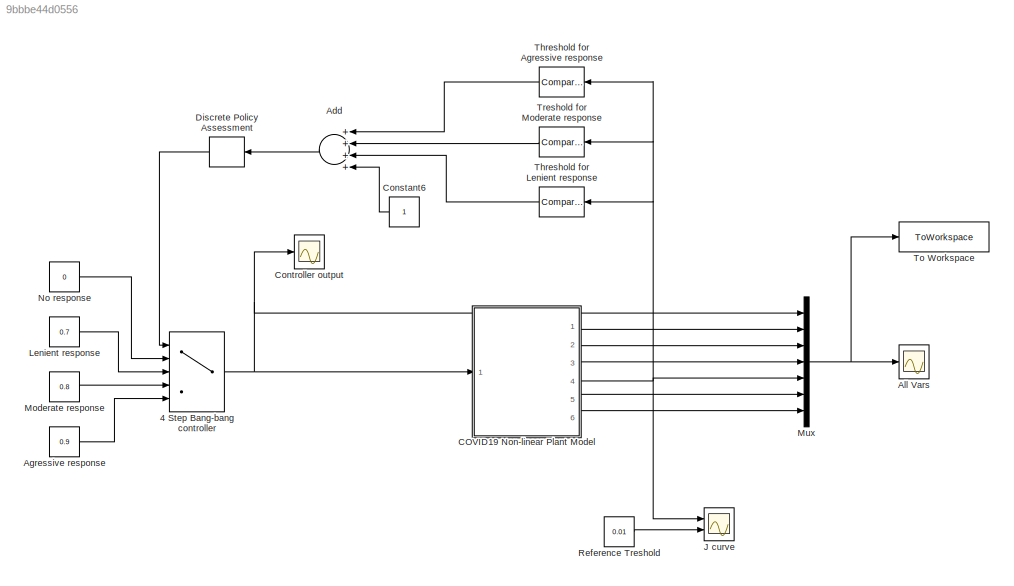
MODEL slx_9bbbe44d0556
KIND model
CONFIG AbsTol = auto
CONFIG EnableMultiTasking = off
CONFIG FixedStep = auto
CONFIG MaxStep = auto
CONFIG MinStep = auto
CONFIG RelTol = 1e-9
CONFIG SampleTimeConstraint = Unconstrained
CONFIG Solver = VariableStepAuto
CONFIG SolverName = VariableStepAuto
CONFIG StartTime = 0.0
CONFIG StopTime = 200
BLOCK [MultiPortSwitch] 4 Step Bang-bang controller
  InputSameDT = off
  Inputs = 4
  Ports = [5, 1]
  SaturateOnIntegerOverflow = off
BLOCK [Sum] Add
  InputSameDT = off
  Inputs = ++++
  OutDataTypeStr = Inherit: Inherit via internal rule
  Ports = [4, 1]
  SaturateOnIntegerOverflow = off
BLOCK [Constant] Agressive response
  Value = 0.9
BLOCK [Scope] All Vars
  Floating = off
  NumInputPorts = 1
  Ports = [1]
  ScopeSpecificationString = Simulink.scopes.TimeScopeBlockCfg('CurrentConfiguration', extmgr.ConfigurationSet(extmgr.Configuration('Core','General UI',true),extmgr.Configuration('Core','Source UI',true),extmgr.Configuration('Sources','WiredSimulink',true,'DataLoggingVariableName','ScopeData2'),extmgr.Configuration('Visuals','Time Domain',true,'SerializedDisplays',{struct('MinYLimReal','-0.1125','MaxYLimReal','1.0125','YLabel...<+1609ch>
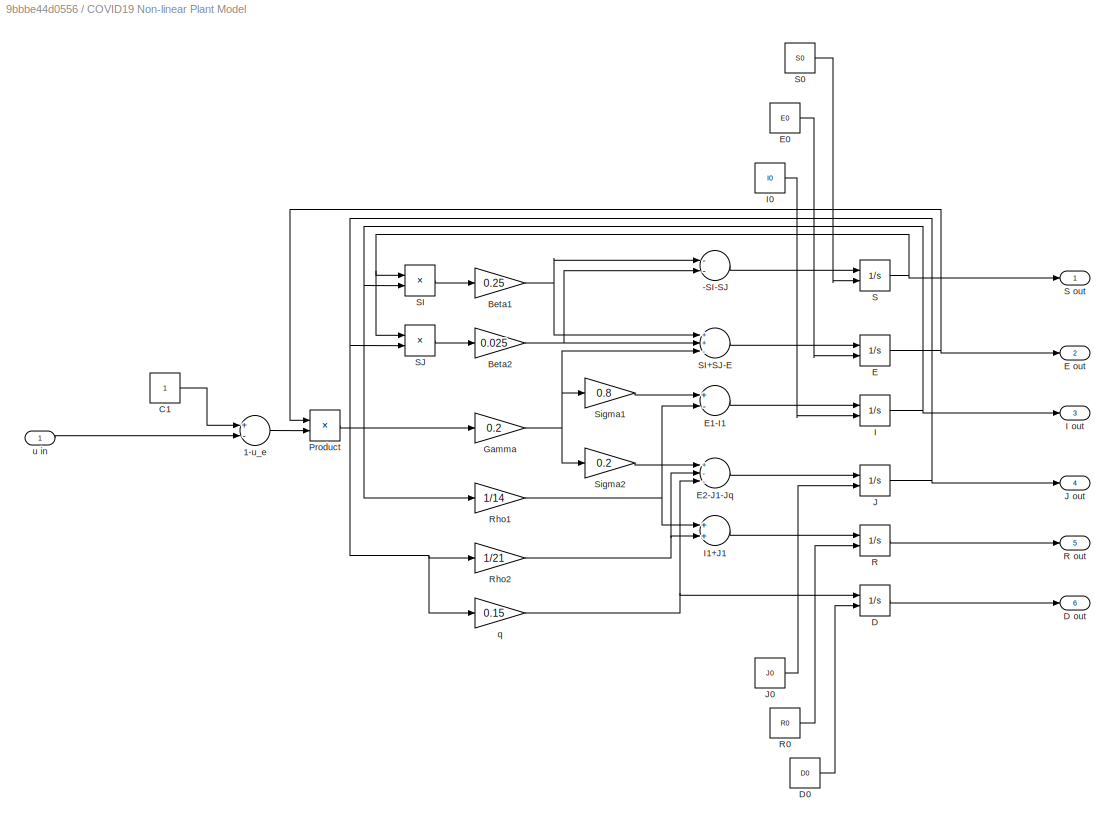
BLOCK [SubSystem] COVID19 Non-linear Plant Model
  Ports = [1, 6]
  RequestExecContextInheritance = off
BLOCK [Sum] COVID19 Non-linear Plant Model/-SI-SJ
  InputSameDT = off
  Inputs = --
  OutDataTypeStr = Inherit: Inherit via internal rule
  Ports = [2, 1]
  SaturateOnIntegerOverflow = off
BLOCK [Sum] COVID19 Non-linear Plant Model/1-u_e
  InputSameDT = off
  Inputs = +-
  OutDataTypeStr = Inherit: Inherit via internal rule
  Ports = [2, 1]
  SaturateOnIntegerOverflow = off
BLOCK [Gain] COVID19 Non-linear Plant Model/Beta1
  Gain = 0.25
  OutDataTypeStr = Inherit: Inherit via internal rule
  ParamDataTypeStr = Inherit: Inherit via internal rule
  SaturateOnIntegerOverflow = off
BLOCK [Gain] COVID19 Non-linear Plant Model/Beta2
  Gain = 0.025
  OutDataTypeStr = Inherit: Inherit via internal rule
  ParamDataTypeStr = Inherit: Inherit via internal rule
  SaturateOnIntegerOverflow = off
BLOCK [Constant] COVID19 Non-linear Plant Model/C1
BLOCK [Integrator] COVID19 Non-linear Plant Model/D
  InitialConditionSource = external
  Ports = [2, 1]
BLOCK [Outport] COVID19 Non-linear Plant Model/D out
  IconDisplay = Port number
  Port = 6
BLOCK [Constant] COVID19 Non-linear Plant Model/D0
  Value = D0
BLOCK [Integrator] COVID19 Non-linear Plant Model/E
  InitialConditionSource = external
  Ports = [2, 1]
BLOCK [Outport] COVID19 Non-linear Plant Model/E out
  IconDisplay = Port number
  Port = 2
BLOCK [Constant] COVID19 Non-linear Plant Model/E0
  Value = E0
BLOCK [Sum] COVID19 Non-linear Plant Model/E1-I1
  InputSameDT = off
  Inputs = +-
  OutDataTypeStr = Inherit: Inherit via internal rule
  Ports = [2, 1]
  SaturateOnIntegerOverflow = off
BLOCK [Sum] COVID19 Non-linear Plant Model/E2-J1-Jq
  InputSameDT = off
  Inputs = +--
  OutDataTypeStr = Inherit: Inherit via internal rule
  Ports = [3, 1]
  SaturateOnIntegerOverflow = off
BLOCK [Gain] COVID19 Non-linear Plant Model/Gamma
  Gain = 0.2
  OutDataTypeStr = Inherit: Inherit via internal rule
  ParamDataTypeStr = Inherit: Inherit via internal rule
  SaturateOnIntegerOverflow = off
BLOCK [Integrator] COVID19 Non-linear Plant Model/I
  InitialConditionSource = external
  Ports = [2, 1]
BLOCK [Outport] COVID19 Non-linear Plant Model/I out
  IconDisplay = Port number
  Port = 3
BLOCK [Constant] COVID19 Non-linear Plant Model/I0
  Value = I0
BLOCK [Sum] COVID19 Non-linear Plant Model/I1+J1
  InputSameDT = off
  OutDataTypeStr = Inherit: Inherit via internal rule
  Ports = [2, 1]
  SaturateOnIntegerOverflow = off
BLOCK [Integrator] COVID19 Non-linear Plant Model/J
  InitialConditionSource = external
  Ports = [2, 1]
BLOCK [Outport] COVID19 Non-linear Plant Model/J out
  IconDisplay = Port number
  Port = 4
BLOCK [Constant] COVID19 Non-linear Plant Model/J0
  Value = J0
BLOCK [Product] COVID19 Non-linear Plant Model/Product
  InputSameDT = off
  OutDataTypeStr = Inherit: Inherit via internal rule
  Ports = [2, 1]
  RndMeth = Floor
  SaturateOnIntegerOverflow = off
BLOCK [Integrator] COVID19 Non-linear Plant Model/R
  InitialConditionSource = external
  Ports = [2, 1]
BLOCK [Outport] COVID19 Non-linear Plant Model/R out
  IconDisplay = Port number
  Port = 5
BLOCK [Constant] COVID19 Non-linear Plant Model/R0
  Value = R0
BLOCK [Gain] COVID19 Non-linear Plant Model/Rho1
  Gain = 1/14
  OutDataTypeStr = Inherit: Inherit via internal rule
  ParamDataTypeStr = Inherit: Inherit via internal rule
  SaturateOnIntegerOverflow = off
BLOCK [Gain] COVID19 Non-linear Plant Model/Rho2
  Gain = 1/21
  OutDataTypeStr = Inherit: Inherit via internal rule
  ParamDataTypeStr = Inherit: Inherit via internal rule
  SaturateOnIntegerOverflow = off
BLOCK [Integrator] COVID19 Non-linear Plant Model/S
  InitialConditionSource = external
  Ports = [2, 1]
BLOCK [Outport] COVID19 Non-linear Plant Model/S out
  IconDisplay = Port number
BLOCK [Constant] COVID19 Non-linear Plant Model/S0
  Value = S0
BLOCK [Product] COVID19 Non-linear Plant Model/SI
  InputSameDT = off
  OutDataTypeStr = Inherit: Inherit via internal rule
  Ports = [2, 1]
  RndMeth = Floor
  SaturateOnIntegerOverflow = off
BLOCK [Sum] COVID19 Non-linear Plant Model/SI+SJ-E
  InputSameDT = off
  Inputs = ++-
  OutDataTypeStr = Inherit: Inherit via internal rule
  Ports = [3, 1]
  SaturateOnIntegerOverflow = off
BLOCK [Product] COVID19 Non-linear Plant Model/SJ
  InputSameDT = off
  OutDataTypeStr = Inherit: Inherit via internal rule
  Ports = [2, 1]
  RndMeth = Floor
  SaturateOnIntegerOverflow = off
BLOCK [Gain] COVID19 Non-linear Plant Model/Sigma1
  Gain = 0.8
  OutDataTypeStr = Inherit: Inherit via internal rule
  ParamDataTypeStr = Inherit: Inherit via internal rule
  SaturateOnIntegerOverflow = off
BLOCK [Gain] COVID19 Non-linear Plant Model/Sigma2
  Gain = 0.2
  OutDataTypeStr = Inherit: Inherit via internal rule
  ParamDataTypeStr = Inherit: Inherit via internal rule
  SaturateOnIntegerOverflow = off
BLOCK [Gain] COVID19 Non-linear Plant Model/q
  Gain = 0.15
  OutDataTypeStr = Inherit: Inherit via internal rule
  ParamDataTypeStr = Inherit: Inherit via internal rule
  SaturateOnIntegerOverflow = off
BLOCK [Inport] COVID19 Non-linear Plant Model/u in
  IconDisplay = Port number
BLOCK [Constant] Constant6
BLOCK [Scope] Controller output
  Floating = off
  NumInputPorts = 1
  Ports = [1]
  ScopeSpecificationString = Simulink.scopes.TimeScopeBlockCfg('CurrentConfiguration', extmgr.ConfigurationSet(extmgr.Configuration('Core','General UI',true),extmgr.Configuration('Core','Source UI',true),extmgr.Configuration('Sources','WiredSimulink',true,'DataLoggingVariableName','ScopeData1'),extmgr.Configuration('Visuals','Time Domain',true,'SerializedDisplays',{struct('MinYLimReal','-0.1125','MaxYLimReal','1.0125','YLabel...<+1434ch>
BLOCK [ZeroOrderHold] Discrete Policy Assessment
  SampleTime = 21
BLOCK [Scope] J curve
  Floating = off
  NumInputPorts = 2
  Ports = [2]
  ScopeSpecificationString = Simulink.scopes.TimeScopeBlockCfg('CurrentConfiguration', extmgr.ConfigurationSet(extmgr.Configuration('Core','General UI',true),extmgr.Configuration('Core','Source UI',true),extmgr.Configuration('Sources','WiredSimulink',true),extmgr.Configuration('Visuals','Time Domain',true,'SerializedDisplays',{struct('MinYLimReal','-0.00108','MaxYLimReal','0.01123','YLabelReal','','MinYLimMag','0.00000','MaxY...<+1393ch>
BLOCK [Constant] Lenient response
  Value = 0.7
BLOCK [Constant] Moderate response
  Value = 0.8
BLOCK [Mux] Mux
  DisplayOption = bar
  Inputs = 7
  Ports = [7, 1]
BLOCK [Constant] No response
  Value = 0
BLOCK [Constant] Reference Treshold
  Value = 0.01
BLOCK [Reference] Threshold for Agressive response  REF=simulink/Logic and Bit
Operations/Compare
To Constant
  Ports = [1, 1]
  SourceBlock = simulink/Logic and Bit\nOperations/Compare\nTo Constant
  SourceProductBaseCode = SL
  SourceProductName = Simulink
  SourceType = Compare To Constant
BLOCK [Reference] Threshold for Lenient response  REF=simulink/Logic and Bit
Operations/Compare
To Constant
  Ports = [1, 1]
  SourceBlock = simulink/Logic and Bit\nOperations/Compare\nTo Constant
  SourceProductBaseCode = SL
  SourceProductName = Simulink
  SourceType = Compare To Constant
BLOCK [ToWorkspace] To Workspace
  FixptAsFi = on
  MaxDataPoints = inf
  Ports = [1]
  SampleTime = -1
  SaveFormat = Timeseries
  VariableName = sim_data
BLOCK [Reference] Treshold for Moderate response  REF=simulink/Logic and Bit
Operations/Compare
To Constant
  Ports = [1, 1]
  SourceBlock = simulink/Logic and Bit\nOperations/Compare\nTo Constant
  SourceProductBaseCode = SL
  SourceProductName = Simulink
  SourceType = Compare To Constant
NET 4 Step Bang-bang controller:1 -> COVID19 Non-linear Plant Model:1, Controller output:1, Mux:1
LINE Add:1 -> Discrete Policy Assessment:1
LINE Agressive response:1 -> 4 Step Bang-bang controller:5
LINE COVID19 Non-linear Plant Model/-SI-SJ:1 -> COVID19 Non-linear Plant Model/S:1
LINE COVID19 Non-linear Plant Model/1-u_e:1 -> COVID19 Non-linear Plant Model/Product:2
NET COVID19 Non-linear Plant Model/Beta1:1 -> COVID19 Non-linear Plant Model/-SI-SJ:1, COVID19 Non-linear Plant Model/SI+SJ-E:1
NET COVID19 Non-linear Plant Model/Beta2:1 -> COVID19 Non-linear Plant Model/-SI-SJ:2, COVID19 Non-linear Plant Model/SI+SJ-E:2
LINE COVID19 Non-linear Plant Model/C1:1 -> COVID19 Non-linear Plant Model/1-u_e:1
LINE COVID19 Non-linear Plant Model/D0:1 -> COVID19 Non-linear Plant Model/D:2
LINE COVID19 Non-linear Plant Model/D:1 -> COVID19 Non-linear Plant Model/D out:1
LINE COVID19 Non-linear Plant Model/E0:1 -> COVID19 Non-linear Plant Model/E:2
LINE COVID19 Non-linear Plant Model/E1-I1:1 -> COVID19 Non-linear Plant Model/I:1
LINE COVID19 Non-linear Plant Model/E2-J1-Jq:1 -> COVID19 Non-linear Plant Model/J:1
NET COVID19 Non-linear Plant Model/E:1 -> COVID19 Non-linear Plant Model/E out:1, COVID19 Non-linear Plant Model/Product:1
NET COVID19 Non-linear Plant Model/Gamma:1 -> COVID19 Non-linear Plant Model/SI+SJ-E:3, COVID19 Non-linear Plant Model/Sigma1:1, COVID19 Non-linear Plant Model/Sigma2:1
LINE COVID19 Non-linear Plant Model/I0:1 -> COVID19 Non-linear Plant Model/I:2
LINE COVID19 Non-linear Plant Model/I1+J1:1 -> COVID19 Non-linear Plant Model/R:1
NET COVID19 Non-linear Plant Model/I:1 -> COVID19 Non-linear Plant Model/I out:1, COVID19 Non-linear Plant Model/Rho1:1, COVID19 Non-linear Plant Model/SI:2
LINE COVID19 Non-linear Plant Model/J0:1 -> COVID19 Non-linear Plant Model/J:2
NET COVID19 Non-linear Plant Model/J:1 -> COVID19 Non-linear Plant Model/J out:1, COVID19 Non-linear Plant Model/Rho2:1, COVID19 Non-linear Plant Model/SJ:2, COVID19 Non-linear Plant Model/q:1
LINE COVID19 Non-linear Plant Model/Product:1 -> COVID19 Non-linear Plant Model/Gamma:1
LINE COVID19 Non-linear Plant Model/R0:1 -> COVID19 Non-linear Plant Model/R:2
LINE COVID19 Non-linear Plant Model/R:1 -> COVID19 Non-linear Plant Model/R out:1
NET COVID19 Non-linear Plant Model/Rho1:1 -> COVID19 Non-linear Plant Model/E1-I1:2, COVID19 Non-linear Plant Model/I1+J1:1
NET COVID19 Non-linear Plant Model/Rho2:1 -> COVID19 Non-linear Plant Model/E2-J1-Jq:2, COVID19 Non-linear Plant Model/I1+J1:2
LINE COVID19 Non-linear Plant Model/S0:1 -> COVID19 Non-linear Plant Model/S:2
NET COVID19 Non-linear Plant Model/S:1 -> COVID19 Non-linear Plant Model/S out:1, COVID19 Non-linear Plant Model/SI:1, COVID19 Non-linear Plant Model/SJ:1
LINE COVID19 Non-linear Plant Model/SI+SJ-E:1 -> COVID19 Non-linear Plant Model/E:1
LINE COVID19 Non-linear Plant Model/SI:1 -> COVID19 Non-linear Plant Model/Beta1:1
LINE COVID19 Non-linear Plant Model/SJ:1 -> COVID19 Non-linear Plant Model/Beta2:1
LINE COVID19 Non-linear Plant Model/Sigma1:1 -> COVID19 Non-linear Plant Model/E1-I1:1
LINE COVID19 Non-linear Plant Model/Sigma2:1 -> COVID19 Non-linear Plant Model/E2-J1-Jq:1
NET COVID19 Non-linear Plant Model/q:1 -> COVID19 Non-linear Plant Model/D:1, COVID19 Non-linear Plant Model/E2-J1-Jq:3
LINE COVID19 Non-linear Plant Model/u in:1 -> COVID19 Non-linear Plant Model/1-u_e:2
LINE COVID19 Non-linear Plant Model:1 -> Mux:2
LINE COVID19 Non-linear Plant Model:2 -> Mux:3
LINE COVID19 Non-linear Plant Model:3 -> Mux:4
NET COVID19 Non-linear Plant Model:4 -> J curve:1, Mux:5, Threshold for Agressive response:1, Threshold for Lenient response:1, Treshold for Moderate response:1
LINE COVID19 Non-linear Plant Model:5 -> Mux:6
LINE COVID19 Non-linear Plant Model:6 -> Mux:7
LINE Constant6:1 -> Add:4
LINE Discrete Policy Assessment:1 -> 4 Step Bang-bang controller:1
LINE Lenient response:1 -> 4 Step Bang-bang controller:3
LINE Moderate response:1 -> 4 Step Bang-bang controller:4
NET Mux:1 -> All Vars:1, To Workspace:1
LINE No response:1 -> 4 Step Bang-bang controller:2
LINE Reference Treshold:1 -> J curve:2
LINE Threshold for Agressive response:1 -> Add:1
LINE Threshold for Lenient response:1 -> Add:3
LINE Treshold for Moderate response:1 -> Add:2
note: NET lines group one-source signal fan-out (src -> all destinations, sorted); 1:1 wires keep LINE
